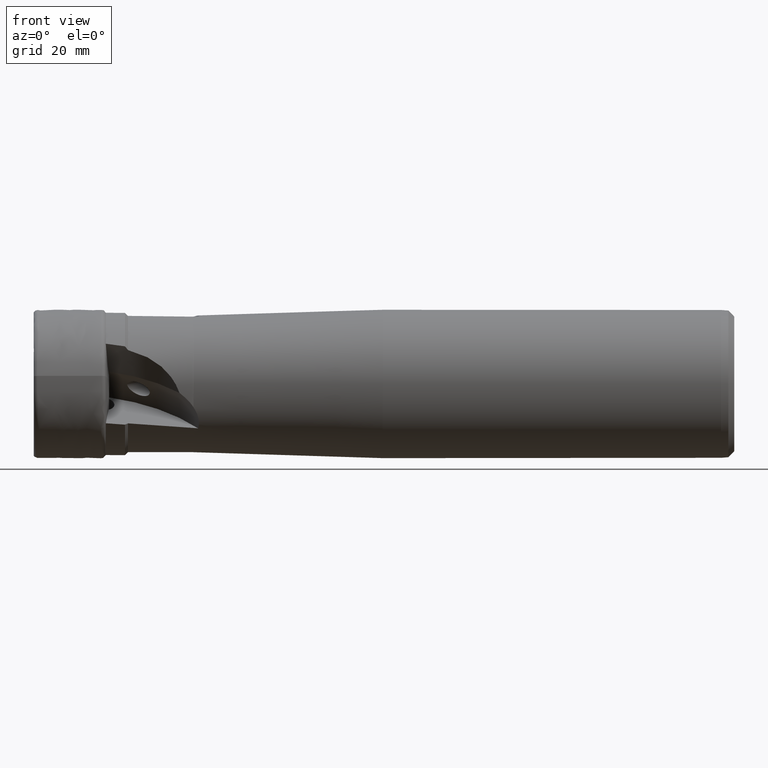
[diagram: clean part render]
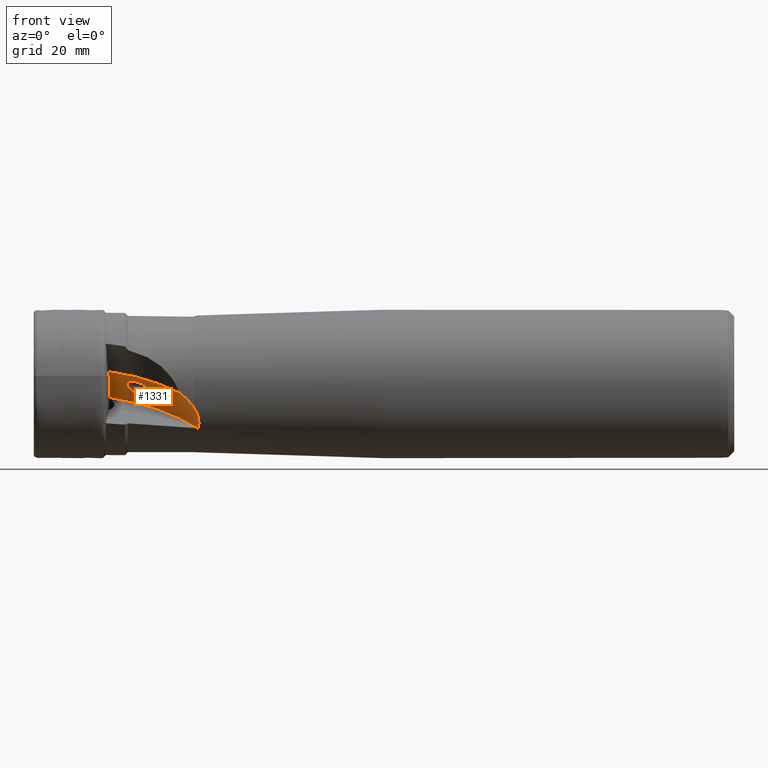
[diagram: same view with one face highlighted and labeled with its STEP entity id]
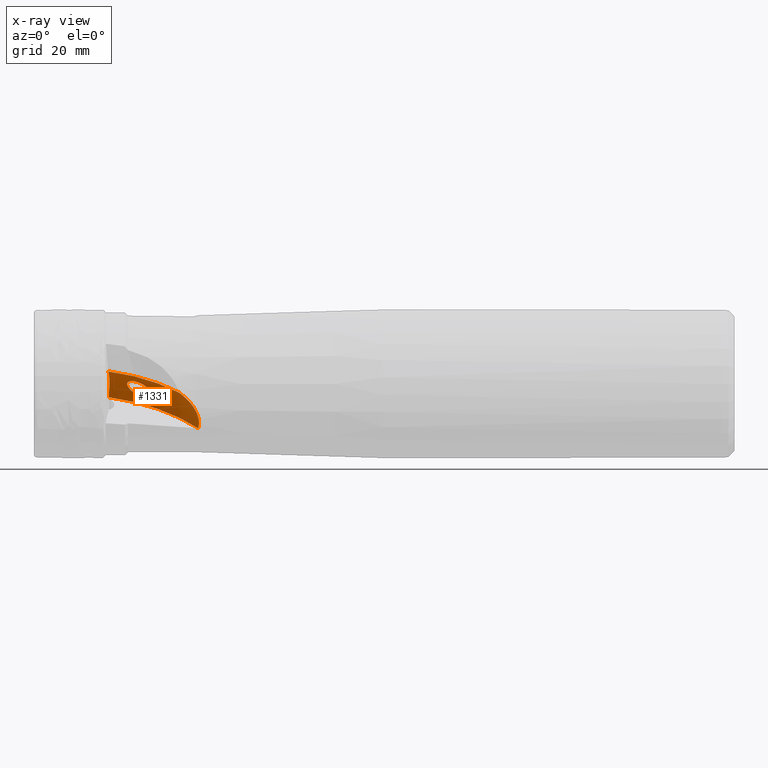
[diagram: x-ray of the same camera — body ghosted, the highlighted face saturated]
A machine part, front view. The second image highlights one B-rep face of the part: STEP entity #1331.
The next image is the same camera in x-ray: the body ghosted, the highlighted face saturated — about 0% of this face is hidden behind the body in this view.
In plain terms, the highlighted toroidal blend (fillet) surface has major radius 13.8 mm and minor (blend) radius 10 mm.
Its self-contained STEP definition (entity closure, byte-faithful):
#33 = CARTESIAN_POINT ( 'NONE',  ( 14.89680585169600800, -4.758387172139730800, -0.2850060931331858700 ) ) ;
#52 = CARTESIAN_POINT ( 'NONE',  ( 17.37362530630319700, -4.272434096124311700, -2.008715493669090500 ) ) ;
#66 = CARTESIAN_POINT ( 'NONE',  ( 18.44590142681072100, -6.004011652138822300, -0.8906535339798697900 ) ) ;
#138 = CARTESIAN_POINT ( 'NONE',  ( 11.74053314913045300, -7.171604118940317500, 2.015423973855287700 ) ) ;
#140 = CIRCLE ( 'NONE', #1951, 21.64601809837321900 ) ;
#154 = CARTESIAN_POINT ( 'NONE',  ( 11.85305515062325200, -3.677812453876879500, -0.4706299041367632000 ) ) ;
#215 = EDGE_CURVE ( 'NONE', #1222, #596, #2408, .T. ) ;
#338 = CARTESIAN_POINT ( 'NONE',  ( 15.85588381780774000, -6.199835387417049800, 0.4610457171129958000 ) ) ;
#352 = CARTESIAN_POINT ( 'NONE',  ( 15.02664611174073000, -4.544257959628874100, -0.5347802782509134500 ) ) ;
#366 = CARTESIAN_POINT ( 'NONE',  ( 17.69824089293760500, -4.408247894869638200, -2.047367825138214100 ) ) ;
#378 = CARTESIAN_POINT ( 'NONE',  ( 17.97721694870348900, -6.272000231066345900, -0.4291048561898360100 ) ) ;
#465 = CARTESIAN_POINT ( 'NONE',  ( 11.82408927831467200, -3.138806630899038100, -1.110349356343269800 ) ) ;
#514 = CARTESIAN_POINT ( 'NONE',  ( 11.71453628735178800, -7.298980259824182900, 2.070755615729761100 ) ) ;
#596 = VERTEX_POINT ( 'NONE', #1917 ) ;
#599 = CARTESIAN_POINT ( 'NONE',  ( 26.03133763206777500, -10.81359400315271900, -3.915032732030978100 ) ) ;
#641 = ORIENTED_EDGE ( 'NONE', *, *, #1614, .F. ) ;
#660 = CARTESIAN_POINT ( 'NONE',  ( 15.44037027244832500, -5.971726910518137600, 0.4627119250872921400 ) ) ;
#661 = CARTESIAN_POINT ( 'NONE',  ( 24.74417164095874400, -11.24706722738132400, -2.407169994389801300 ) ) ;
#673 = CARTESIAN_POINT ( 'NONE',  ( 15.21330493176795100, -4.371882924163942100, -0.7819695686425652800 ) ) ;
#689 = CARTESIAN_POINT ( 'NONE',  ( 18.00654804255746600, -4.581889419813415500, -2.038090891945974400 ) ) ;
#707 = CARTESIAN_POINT ( 'NONE',  ( 17.39195249043181900, -6.402953177195907000, -0.05038293013854917200 ) ) ;
#752 = FACE_OUTER_BOUND ( 'NONE', #4160, .T. ) ;
#777 = CARTESIAN_POINT ( 'NONE',  ( 11.76484150641106300, -7.045510809435939800, 1.957681086644255300 ) ) ;
#785 = CARTESIAN_POINT ( 'NONE',  ( 26.68432782035414900, -10.33113061558315600, -5.109875293251161700 ) ) ;
#792 = CARTESIAN_POINT ( 'NONE',  ( 11.80365453807018600, -2.654280204982632600, -1.797550583777669100 ) ) ;
#793 = VERTEX_POINT ( 'NONE', #2619 ) ;
#801 = ORIENTED_EDGE ( 'NONE', *, *, #215, .F. ) ;
#806 = EDGE_CURVE ( 'NONE', #3890, #793, #2135, .T. ) ;
#930 = CARTESIAN_POINT ( 'NONE',  ( 23.67047079365466200, -11.40104278000693800, -1.505398129550215000 ) ) ;
#955 = DIRECTION ( 'NONE',  ( 0.0000000000000000000, 0.8660254037844361500, 0.5000000000000041100 ) ) ;
#973 = CARTESIAN_POINT ( 'NONE',  ( 15.16857128925205900, -5.748748826103301300, 0.4064114801340874500 ) ) ;
#974 = CARTESIAN_POINT ( 'NONE',  ( 25.99999999999279500, -10.82962412357454000, -3.869010382784253900 ) ) ;
#997 = CARTESIAN_POINT ( 'NONE',  ( 15.52069742543081400, -4.199569382455217200, -1.096493297140913800 ) ) ;
#1014 = CARTESIAN_POINT ( 'NONE',  ( 18.28431261685758000, -4.795221713077220100, -1.971642788522755900 ) ) ;
#1028 = CARTESIAN_POINT ( 'NONE',  ( 16.74833160693063400, -6.407556578726800300, 0.2383829095097723900 ) ) ;
#1081 = B_SPLINE_CURVE_WITH_KNOTS ( 'NONE', 3,
 ( #2411, #138, #777, #3079, #1103, #3407, #1435, #3747, #1764, #4088, #2097, #154, #2424, #465, #2766, #792, #3089, #1120 ),
 .UNSPECIFIED., .F., .F.,
 ( 4, 2, 2, 2, 2, 2, 2, 2, 4 ),
 ( 5.057544569639795700E-018, 0.0004175039403963024500, 0.0008350078807925999000, 0.001670015761585194600, 0.003340031523170384400, 0.004175039403962978700, 0.005010047284755573400, 0.005845055165548167200, 0.006680063046340761100 ),
 .UNSPECIFIED. ) ;
#1098 = CARTESIAN_POINT ( 'NONE',  ( 26.22907893433583500, -10.71509711798557200, -4.205300023507242600 ) ) ;
#1103 = CARTESIAN_POINT ( 'NONE',  ( 11.80973215259392900, -6.669774958904882900, 1.777151071452914600 ) ) ;
#1116 = CARTESIAN_POINT ( 'NONE',  ( 26.93920088092640700, -9.826651468881298300, -6.039747243701240700 ) ) ;
#1120 = CARTESIAN_POINT ( 'NONE',  ( 11.81839032143651000, -2.370954306313830100, -2.281029043459628500 ) ) ;
#1142 = AXIS2_PLACEMENT_3D ( 'NONE', #3110, #2924, #955 ) ;
#1222 = VERTEX_POINT ( 'NONE', #4003 ) ;
#1314 = CARTESIAN_POINT ( 'NONE',  ( 14.96575886417279700, -5.484605844534165400, 0.2864175112690901000 ) ) ;
#1328 = CARTESIAN_POINT ( 'NONE',  ( 16.08345104765825400, -4.080642629131770800, -1.504928265741874100 ) ) ;
#1331 = ADVANCED_FACE ( 'NONE', ( #2489, #752 ), #1512, .F. ) ;
#1346 = CARTESIAN_POINT ( 'NONE',  ( 18.50480914250577100, -5.042837212272258000, -1.840449377509201200 ) ) ;
#1366 = CARTESIAN_POINT ( 'NONE',  ( 16.29884108575601300, -6.328133132025649300, 0.3704764973618626100 ) ) ;
#1435 = CARTESIAN_POINT ( 'NONE',  ( 11.82944757292715800, -6.055091741062327900, 1.450497706670296400 ) ) ;
#1437 = CARTESIAN_POINT ( 'NONE',  ( 9.339066207848093300, -26.03480272175541200, -8.506398920887207300 ) ) ;
#1441 = CARTESIAN_POINT ( 'NONE',  ( 26.95535735706196700, -9.215149300425990100, -6.938473414591294700 ) ) ;
#1478 = CARTESIAN_POINT ( 'NONE',  ( 23.89388917519803400, -11.37876379767746300, -1.674126670955058800 ) ) ;
#1512 = TOROIDAL_SURFACE ( 'NONE', #3055, 13.80000000000000600, 10.00000000000000200 ) ;
#1595 = CARTESIAN_POINT ( 'NONE',  ( 24.53704449421633200, -11.28605486281836100, -2.215755137179584700 ) ) ;
#1614 = EDGE_CURVE ( 'NONE', #2307, #2307, #3710, .T. ) ;
#1640 = CARTESIAN_POINT ( 'NONE',  ( 14.85708648968307000, -5.199734618123928300, 0.1045873318225872000 ) ) ;
#1658 = CARTESIAN_POINT ( 'NONE',  ( 16.71530745655045900, -4.104039218539828200, -1.820824535167058000 ) ) ;
#1677 = CARTESIAN_POINT ( 'NONE',  ( 18.63780277509953000, -5.309015450773209500, -1.646666457815380700 ) ) ;
#1757 = DIRECTION ( 'NONE',  ( -0.08715574274765847100, 0.4980973490458768200, -0.8627299156628185400 ) ) ;
#1764 = CARTESIAN_POINT ( 'NONE',  ( 11.84756740148387900, -4.890779971950815200, 0.6744652697821325000 ) ) ;
#1768 = DIRECTION ( 'NONE',  ( 0.0000000000000000000, 0.8660254037844362700, 0.5000000000000041100 ) ) ;
#1776 = CARTESIAN_POINT ( 'NONE',  ( 26.81784455521754000, -8.762510163172551700, -7.486488506035929200 ) ) ;
#1826 = EDGE_CURVE ( 'NONE', #596, #3035, #3393, .T. ) ;
#1917 = CARTESIAN_POINT ( 'NONE',  ( 25.99999999999279500, -10.82962412357454000, -3.869010382784253900 ) ) ;
#1951 = AXIS2_PLACEMENT_3D ( 'NONE', #1437, #3750, #1768 ) ;
#1967 = CARTESIAN_POINT ( 'NONE',  ( 16.07438164026677900, -6.275628915493299200, 0.4262552072708247200 ) ) ;
#1988 = CARTESIAN_POINT ( 'NONE',  ( 14.85071075627450000, -4.924629702420844500, -0.1214515952267870400 ) ) ;
#2004 = CARTESIAN_POINT ( 'NONE',  ( 17.26506247179323200, -4.235868740825821100, -1.986671543935085000 ) ) ;
#2014 = CARTESIAN_POINT ( 'NONE',  ( 18.63676064835619800, -5.736994795608381100, -1.232888095545489300 ) ) ;
#2077 = CARTESIAN_POINT ( 'NONE',  ( 8.798700602812610700, -22.94659915767097000, -13.85532439799668200 ) ) ;
#2089 = DIRECTION ( 'NONE',  ( 0.0000000000000000000, 0.8660254037844362700, 0.5000000000000041100 ) ) ;
#2097 = CARTESIAN_POINT ( 'NONE',  ( 11.85879941382088500, -4.063559459501919800, -0.07042589717072123000 ) ) ;
#2135 = CIRCLE ( 'NONE', #1142, 23.80000000000001100 ) ;
#2211 = CARTESIAN_POINT ( 'NONE',  ( 25.99999999999279500, -10.82962412357454000, -3.869010382784253900 ) ) ;
#2286 = CARTESIAN_POINT ( 'NONE',  ( 16.29884108575601300, -6.328133132025649300, 0.3704764973618626100 ) ) ;
#2297 = CARTESIAN_POINT ( 'NONE',  ( 14.93299517014567500, -4.682855010047611600, -0.3677094080351098700 ) ) ;
#2307 = VERTEX_POINT ( 'NONE', #2987 ) ;
#2310 = CARTESIAN_POINT ( 'NONE',  ( 17.58963305188078900, -4.358303792045151500, -2.039074562552091900 ) ) ;
#2312 = CARTESIAN_POINT ( 'NONE',  ( 11.81839032143651000, -2.370954306313830100, -2.281029043459628500 ) ) ;
#2334 = CARTESIAN_POINT ( 'NONE',  ( 18.30394374092508900, -6.109833633763821900, -0.7266575484398021300 ) ) ;
#2408 = B_SPLINE_CURVE_WITH_KNOTS ( 'NONE', 3,
 ( #930, #1478, #2892, #1595, #661, #3569, #2947, #974 ),
 .UNSPECIFIED., .F., .F.,
 ( 4, 2, 2, 4 ),
 ( 0.009462044177749302400, 0.01029990138525307400, 0.01113775859275684600, 0.01281347300776439000 ),
 .UNSPECIFIED. ) ;
#2411 = CARTESIAN_POINT ( 'NONE',  ( 11.71453628735178800, -7.298980259824182900, 2.070755615729761100 ) ) ;
#2422 = EDGE_CURVE ( 'NONE', #3540, #3890, #1081, .T. ) ;
#2424 = CARTESIAN_POINT ( 'NONE',  ( 11.84497975711512700, -3.492702163420849300, -0.6784405679213217900 ) ) ;
#2487 = ORIENTED_EDGE ( 'NONE', *, *, #3452, .F. ) ;
#2489 = FACE_BOUND ( 'NONE', #3512, .T. ) ;
#2550 = CARTESIAN_POINT ( 'NONE',  ( 26.01042246297695100, -10.82415357783603200, -3.884322813673981100 ) ) ;
#2561 = CARTESIAN_POINT ( 'NONE',  ( 26.02086765994800300, -10.81880919911712300, -3.899663709908736600 ) ) ;
#2564 = ORIENTED_EDGE ( 'NONE', *, *, #2422, .T. ) ;
#2619 = CARTESIAN_POINT ( 'NONE',  ( 26.81784455521754000, -8.762510163172551700, -7.486488506035929200 ) ) ;
#2623 = CARTESIAN_POINT ( 'NONE',  ( 15.54140398339492700, -6.034945094205740500, 0.4682731493989211200 ) ) ;
#2640 = CARTESIAN_POINT ( 'NONE',  ( 15.08431158242800900, -4.481560050348599900, -0.6189509289188051000 ) ) ;
#2659 = CARTESIAN_POINT ( 'NONE',  ( 17.90657339942201900, -4.520102879464506200, -2.046745569106709400 ) ) ;
#2673 = CARTESIAN_POINT ( 'NONE',  ( 17.78970239898252400, -6.329799604268325600, -0.2928714784674247800 ) ) ;
#2760 = CARTESIAN_POINT ( 'NONE',  ( 26.40094587851146500, -10.60045472459129100, -4.502088298322129300 ) ) ;
#2766 = CARTESIAN_POINT ( 'NONE',  ( 11.81191817258921100, -2.969791146365605700, -1.335059385108757500 ) ) ;
#2892 = CARTESIAN_POINT ( 'NONE',  ( 24.11219645345880000, -11.35181571032571500, -1.849563535887853000 ) ) ;
#2924 = DIRECTION ( 'NONE',  ( -0.08715574274765847100, 0.4980973490458768200, -0.8627299156628185400 ) ) ;
#2946 = CARTESIAN_POINT ( 'NONE',  ( 15.25473135667979300, -5.829450182387952300, 0.4320855763381471500 ) ) ;
#2947 = CARTESIAN_POINT ( 'NONE',  ( 25.69288532865974500, -10.99082257148630500, -3.417804925193381300 ) ) ;
#2962 = CARTESIAN_POINT ( 'NONE',  ( 15.28518211655588000, -4.324105840321167600, -0.8617808405890045000 ) ) ;
#2976 = CARTESIAN_POINT ( 'NONE',  ( 18.19619336364742400, -4.719894863493650000, -2.000507922418279300 ) ) ;
#2987 = CARTESIAN_POINT ( 'NONE',  ( 16.29884108575601700, -6.328133132025649300, 0.3704764973618625600 ) ) ;
#2997 = CARTESIAN_POINT ( 'NONE',  ( 17.18341097812233900, -6.418528623538233700, 0.05534505086634127600 ) ) ;
#3035 = VERTEX_POINT ( 'NONE', #3233 ) ;
#3055 = AXIS2_PLACEMENT_3D ( 'NONE', #2077, #1757, #2089 ) ;
#3079 = CARTESIAN_POINT ( 'NONE',  ( 11.79945675326912800, -6.794597658247273100, 1.838543748664471600 ) ) ;
#3081 = ORIENTED_EDGE ( 'NONE', *, *, #4075, .F. ) ;
#3085 = CARTESIAN_POINT ( 'NONE',  ( 26.79620523868806000, -10.17413617329238700, -5.424502048652596100 ) ) ;
#3089 = CARTESIAN_POINT ( 'NONE',  ( 11.80870863783551300, -2.507422186151358800, -2.035903943168210000 ) ) ;
#3110 = CARTESIAN_POINT ( 'NONE',  ( 8.798700602812610700, -22.94659915767097400, -13.85532439799668000 ) ) ;
#3233 = CARTESIAN_POINT ( 'NONE',  ( 26.03133763206777500, -10.81359400315271900, -3.915032732030978100 ) ) ;
#3280 = CARTESIAN_POINT ( 'NONE',  ( 15.02526200871046800, -5.577748765425862000, 0.3341931587088161100 ) ) ;
#3295 = CARTESIAN_POINT ( 'NONE',  ( 15.69901873778594500, -4.144076945746532700, -1.241727602908904800 ) ) ;
#3314 = B_SPLINE_CURVE_WITH_KNOTS ( 'NONE', 3,
 ( #4084, #1098, #2760, #785, #3085, #1116, #3418, #1441, #3758, #1776 ),
 .UNSPECIFIED., .F., .F.,
 ( 4, 2, 2, 2, 4 ),
 ( 3.650986622520055100E-007, 0.001083339516355981400, 0.002166313934049710800, 0.003249288351743440300, 0.004332262769437170100 ),
 .UNSPECIFIED. ) ;
#3317 = CARTESIAN_POINT ( 'NONE',  ( 18.43818566514257600, -4.955953964436912600, -1.892118536200643400 ) ) ;
#3334 = CARTESIAN_POINT ( 'NONE',  ( 16.52330053124525500, -6.380637348557999500, 0.3146977874529009500 ) ) ;
#3393 = B_SPLINE_CURVE_WITH_KNOTS ( 'NONE', 3,
 ( #2211, #2550, #2561, #599 ),
 .UNSPECIFIED., .F., .F.,
 ( 4, 4 ),
 ( 3.706163190419338600E-007, 5.831083184325183500E-005 ),
 .UNSPECIFIED. ) ;
#3407 = CARTESIAN_POINT ( 'NONE',  ( 11.82924765536060400, -6.298360376007549300, 1.586489392209198500 ) ) ;
#3418 = CARTESIAN_POINT ( 'NONE',  ( 26.97224604283890400, -9.635511694454656600, -6.342752918540172800 ) ) ;
#3452 = EDGE_CURVE ( 'NONE', #3035, #793, #3314, .T. ) ;
#3512 = EDGE_LOOP ( 'NONE', ( #641 ) ) ;
#3532 = ORIENTED_EDGE ( 'NONE', *, *, #1826, .F. ) ;
#3540 = VERTEX_POINT ( 'NONE', #514 ) ;
#3569 = CARTESIAN_POINT ( 'NONE',  ( 25.33546688486206500, -11.10951835604671000, -2.998759125565756200 ) ) ;
#3620 = CARTESIAN_POINT ( 'NONE',  ( 14.88184216089326000, -5.295579586130650700, 0.1715323033236276200 ) ) ;
#3639 = CARTESIAN_POINT ( 'NONE',  ( 16.29095623538214700, -4.073074753809646800, -1.623295394480736500 ) ) ;
#3653 = CARTESIAN_POINT ( 'NONE',  ( 18.60378476453910000, -5.217759952622068400, -1.718868840888812000 ) ) ;
#3710 = B_SPLINE_CURVE_WITH_KNOTS ( 'NONE', 3,
 ( #2286, #1967, #338, #2623, #660, #2946, #973, #3280, #1314, #3620, #1640, #3963, #1988, #33, #2297, #352, #2640, #673, #2962, #997, #3295, #1328, #3639, #1658, #3980, #2004, #52, #2310, #366, #2659, #689, #2976, #1014, #3317, #1346, #3653, #1677, #3997, #2014, #66, #2334, #378, #2673, #707, #2997, #1028, #3334, #1366 ),
 .UNSPECIFIED., .T., .F.,
 ( 4, 2, 2, 2, 2, 2, 2, 2, 2, 2, 2, 2, 2, 2, 2, 2, 2, 2, 2, 2, 2, 2, 2, 4 ),
 ( 0.0000000000000000000, 0.0007011659007236538800, 0.001051748851085480200, 0.001402331801447306500, 0.001752914751809132900, 0.002103497702170959100, 0.002454080652532785600, 0.002804663602894611600, 0.003155246553256438900, 0.003505829503618265400, 0.004206995404341913900, 0.004908161305065571200, 0.005609327205789228400, 0.005959910156151052700, 0.006310493106512877900, 0.006661076056874701300, 0.007011659007236526400, 0.007362241957598349000, 0.007712824907960173300, 0.008413990808683819200, 0.009115156709407464300, 0.009816322610131111200, 0.01051748851085475800, 0.01121865441157840500 ),
 .UNSPECIFIED. ) ;
#3747 = CARTESIAN_POINT ( 'NONE',  ( 11.84043659206503600, -5.344043949618866300, 1.010844573609497800 ) ) ;
#3750 = DIRECTION ( 'NONE',  ( -0.08715574274765847100, 0.4980973490458768200, -0.8627299156628185400 ) ) ;
#3754 = ORIENTED_EDGE ( 'NONE', *, *, #806, .T. ) ;
#3758 = CARTESIAN_POINT ( 'NONE',  ( 26.90516700355721700, -8.992331135027775700, -7.221710863895507900 ) ) ;
#3890 = VERTEX_POINT ( 'NONE', #2312 ) ;
#3963 = CARTESIAN_POINT ( 'NONE',  ( 14.84157710930741000, -5.013609013448267100, -0.04246855281937083500 ) ) ;
#3980 = CARTESIAN_POINT ( 'NONE',  ( 16.93783396973698200, -4.143198808208916600, -1.902401476259032700 ) ) ;
#3997 = CARTESIAN_POINT ( 'NONE',  ( 18.68285213275219200, -5.572395417702507500, -1.413289025843933500 ) ) ;
#4003 = CARTESIAN_POINT ( 'NONE',  ( 23.67047079365466200, -11.40104278000693800, -1.505398129550215000 ) ) ;
#4075 = EDGE_CURVE ( 'NONE', #3540, #1222, #140, .T. ) ;
#4084 = CARTESIAN_POINT ( 'NONE',  ( 26.03133763206777500, -10.81359400315271900, -3.915032732030978100 ) ) ;
#4088 = CARTESIAN_POINT ( 'NONE',  ( 11.85673849686388700, -4.264218366378213600, 0.1219418649406261600 ) ) ;
#4160 = EDGE_LOOP ( 'NONE', ( #3081, #2564, #3754, #2487, #3532, #801 ) ) ;